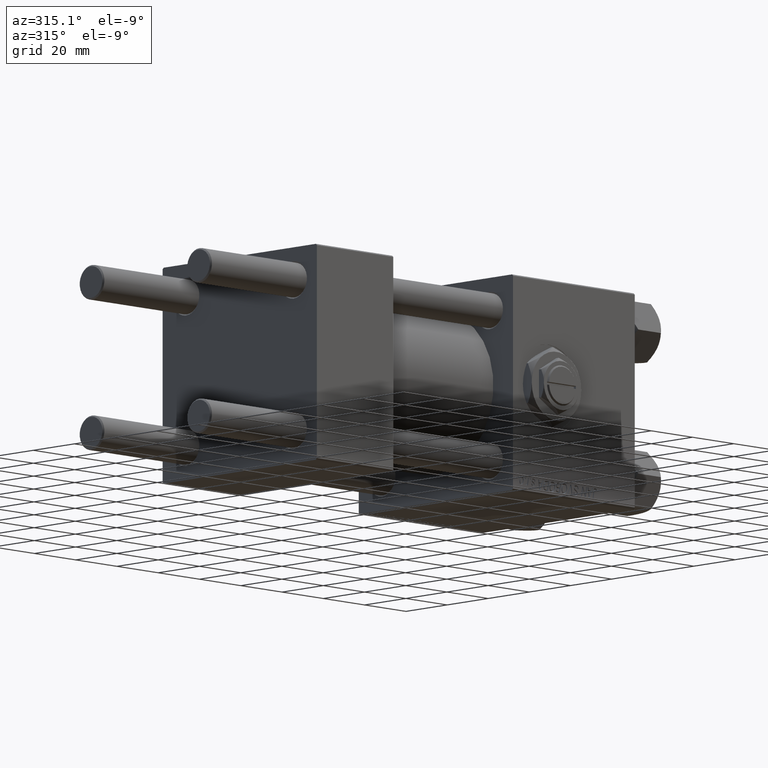
[diagram: clean part render]
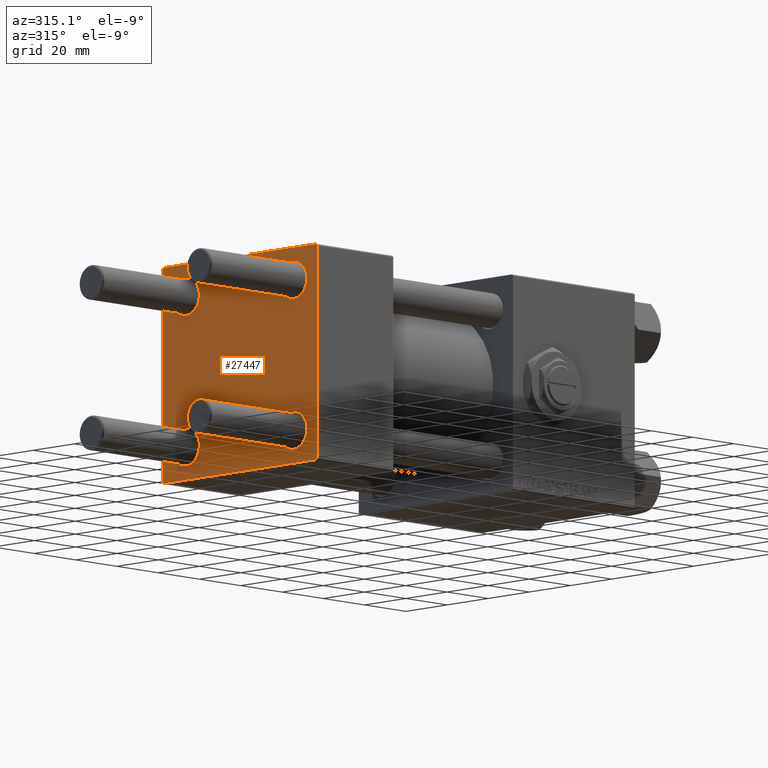
[diagram: same view with one face highlighted and labeled with its STEP entity id]
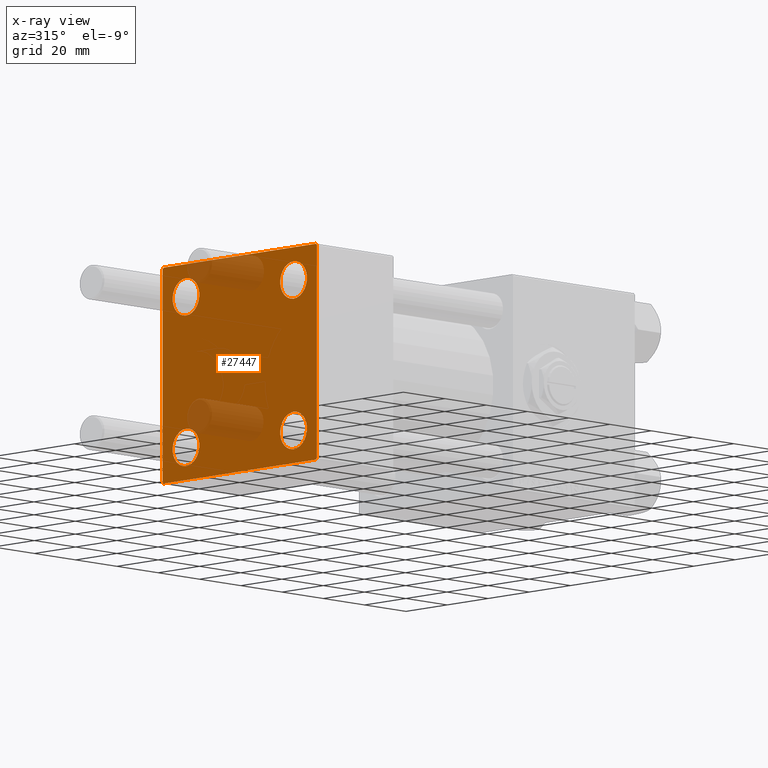
[diagram: x-ray of the same camera — body ghosted, the highlighted face saturated]
A machine part, auxiliary view. The second image highlights one B-rep face of the part: STEP entity #27447.
The next image is the same camera in x-ray: the body ghosted, the highlighted face saturated — about 15% of this face is hidden behind the body in this view.
In plain terms, the highlighted planar face has unit normal (-1, 0, 0).
Its self-contained STEP definition (entity closure, byte-faithful):
#744 = ORIENTED_EDGE ( 'NONE', *, *, #12188, .T. ) ;
#835 = CARTESIAN_POINT ( 'NONE',  ( 0.000000000000000000, 26.14999999999999858, -26.15000000000000213 ) ) ;
#1197 = VERTEX_POINT ( 'NONE', #45998 ) ;
#1341 = CIRCLE ( 'NONE', #18032, 6.500000000000015987 ) ;
#2015 = ORIENTED_EDGE ( 'NONE', *, *, #9398, .F. ) ;
#2099 = CIRCLE ( 'NONE', #37214, 6.500000000000023093 ) ;
#2417 = VERTEX_POINT ( 'NONE', #15288 ) ;
#2962 = CARTESIAN_POINT ( 'NONE',  ( 0.000000000000000000, -26.14999999999999147, 26.15000000000000924 ) ) ;
#2993 = FACE_BOUND ( 'NONE', #40382, .T. ) ;
#3048 = VERTEX_POINT ( 'NONE', #30368 ) ;
#3246 = FACE_OUTER_BOUND ( 'NONE', #37175, .T. ) ;
#3398 = DIRECTION ( 'NONE',  ( 0.000000000000000000, -0.7071067811865524577, 0.7071067811865426878 ) ) ;
#3563 = AXIS2_PLACEMENT_3D ( 'NONE', #49771, #33301, #25705 ) ;
#3636 = EDGE_CURVE ( 'NONE', #21448, #1197, #28379, .T. ) ;
#4049 = CARTESIAN_POINT ( 'NONE',  ( 0.000000000000000000, 26.14999999999999858, 26.15000000000000213 ) ) ;
#4135 = CARTESIAN_POINT ( 'NONE',  ( 0.000000000000000000, 37.24999999999998579, -37.24999999999998579 ) ) ;
#4650 = CARTESIAN_POINT ( 'NONE',  ( 0.000000000000000000, 37.24999999999999289, 37.24999999999999289 ) ) ;
#5219 = ORIENTED_EDGE ( 'NONE', *, *, #7118, .T. ) ;
#5847 = AXIS2_PLACEMENT_3D ( 'NONE', #32639, #40244, #16158 ) ;
#5946 = EDGE_CURVE ( 'NONE', #2417, #22071, #42112, .T. ) ;
#6238 = CARTESIAN_POINT ( 'NONE',  ( 0.000000000000000000, 37.49999999999999289, -37.50000000000000000 ) ) ;
#7118 = EDGE_CURVE ( 'NONE', #35419, #3048, #2099, .T. ) ;
#7170 = FACE_BOUND ( 'NONE', #21075, .T. ) ;
#7358 = LINE ( 'NONE', #31425, #33093 ) ;
#7685 = VECTOR ( 'NONE', #32649, 1000.000000000000114 ) ;
#7847 = LINE ( 'NONE', #35578, #45787 ) ;
#9398 = EDGE_CURVE ( 'NONE', #51560, #9930, #7358, .T. ) ;
#9629 = ORIENTED_EDGE ( 'NONE', *, *, #24409, .T. ) ;
#9750 = DIRECTION ( 'NONE',  ( 0.000000000000000000, 0.000000000000000000, 1.000000000000000000 ) ) ;
#9930 = VERTEX_POINT ( 'NONE', #11957 ) ;
#10439 = VERTEX_POINT ( 'NONE', #50500 ) ;
#11459 = ORIENTED_EDGE ( 'NONE', *, *, #3636, .T. ) ;
#11551 = DIRECTION ( 'NONE',  ( 0.000000000000000000, 9.251858538542971581E-17, -1.000000000000000000 ) ) ;
#11623 = EDGE_CURVE ( 'NONE', #18907, #22582, #33054, .T. ) ;
#11710 = AXIS2_PLACEMENT_3D ( 'NONE', #2962, #34397, #22838 ) ;
#11957 = CARTESIAN_POINT ( 'NONE',  ( 0.000000000000000000, -37.50000000000000000, -37.00000000000003553 ) ) ;
#12169 = CARTESIAN_POINT ( 'NONE',  ( 0.000000000000000000, 26.14999999999999858, -32.65000000000001990 ) ) ;
#12188 = EDGE_CURVE ( 'NONE', #10439, #37427, #1341, .T. ) ;
#12499 = AXIS2_PLACEMENT_3D ( 'NONE', #29621, #45593, #9750 ) ;
#12760 = CIRCLE ( 'NONE', #3563, 6.500000000000015987 ) ;
#12918 = DIRECTION ( 'NONE',  ( 0.000000000000000000, 0.000000000000000000, -1.000000000000000000 ) ) ;
#13612 = DIRECTION ( 'NONE',  ( 0.000000000000000000, 0.000000000000000000, 1.000000000000000000 ) ) ;
#13845 = CARTESIAN_POINT ( 'NONE',  ( 0.000000000000000000, -26.14999999999999147, 32.65000000000003411 ) ) ;
#13984 = DIRECTION ( 'NONE',  ( 0.000000000000000000, 0.000000000000000000, 1.000000000000000000 ) ) ;
#15288 = CARTESIAN_POINT ( 'NONE',  ( 0.000000000000000000, 36.99999999999997868, -37.50000000000000000 ) ) ;
#15291 = CARTESIAN_POINT ( 'NONE',  ( -0.000000000000000000, -37.25000000000000000, 37.25000000000000000 ) ) ;
#16032 = EDGE_CURVE ( 'NONE', #17509, #21448, #25044, .T. ) ;
#16059 = CARTESIAN_POINT ( 'NONE',  ( 0.000000000000000000, 36.99999999999999289, 37.50000000000000000 ) ) ;
#16158 = DIRECTION ( 'NONE',  ( 0.000000000000000000, 0.000000000000000000, 1.000000000000000000 ) ) ;
#16452 = CARTESIAN_POINT ( 'NONE',  ( 0.000000000000000000, 26.14999999999999858, -19.64999999999998792 ) ) ;
#17298 = CARTESIAN_POINT ( 'NONE',  ( 0.000000000000000000, 26.14999999999999858, 19.64999999999998437 ) ) ;
#17509 = VERTEX_POINT ( 'NONE', #16059 ) ;
#17702 = EDGE_CURVE ( 'NONE', #17509, #34661, #42751, .T. ) ;
#17818 = CARTESIAN_POINT ( 'NONE',  ( 0.000000000000000000, -37.50000000000000711, 36.99999999999999289 ) ) ;
#17869 = CARTESIAN_POINT ( 'NONE',  ( 0.000000000000000000, -37.00000000000002132, -37.50000000000000711 ) ) ;
#18032 = AXIS2_PLACEMENT_3D ( 'NONE', #42011, #37294, #13984 ) ;
#18210 = VECTOR ( 'NONE', #51654, 1000.000000000000114 ) ;
#18774 = VECTOR ( 'NONE', #22187, 1000.000000000000000 ) ;
#18907 = VERTEX_POINT ( 'NONE', #12169 ) ;
#19999 = DIRECTION ( 'NONE',  ( 1.000000000000000000, -0.000000000000000000, 0.000000000000000000 ) ) ;
#21075 = EDGE_LOOP ( 'NONE', ( #25436, #26083 ) ) ;
#21448 = VERTEX_POINT ( 'NONE', #30668 ) ;
#21977 = DIRECTION ( 'NONE',  ( 1.000000000000000000, -0.000000000000000000, 0.000000000000000000 ) ) ;
#22071 = VERTEX_POINT ( 'NONE', #17869 ) ;
#22187 = DIRECTION ( 'NONE',  ( 0.000000000000000000, -1.000000000000000000, -9.251858538542972814E-17 ) ) ;
#22189 = CARTESIAN_POINT ( 'NONE',  ( 0.000000000000000000, -37.00000000000000711, 37.49999999999999289 ) ) ;
#22271 = ORIENTED_EDGE ( 'NONE', *, *, #41904, .T. ) ;
#22582 = VERTEX_POINT ( 'NONE', #16452 ) ;
#22615 = FACE_BOUND ( 'NONE', #28283, .T. ) ;
#22838 = DIRECTION ( 'NONE',  ( 0.000000000000000000, 0.000000000000000000, 1.000000000000000000 ) ) ;
#22958 = CARTESIAN_POINT ( 'NONE',  ( 0.000000000000000000, -26.14999999999999147, 19.64999999999999147 ) ) ;
#23317 = VERTEX_POINT ( 'NONE', #22958 ) ;
#23463 = AXIS2_PLACEMENT_3D ( 'NONE', #46439, #46194, #50106 ) ;
#23828 = CARTESIAN_POINT ( 'NONE',  ( 0.000000000000000000, -26.14999999999999147, -19.64999999999999503 ) ) ;
#24409 = EDGE_CURVE ( 'NONE', #37427, #10439, #36715, .T. ) ;
#25044 = LINE ( 'NONE', #4650, #30692 ) ;
#25436 = ORIENTED_EDGE ( 'NONE', *, *, #31497, .T. ) ;
#25705 = DIRECTION ( 'NONE',  ( 0.000000000000000000, 0.000000000000000000, 1.000000000000000000 ) ) ;
#25899 = CARTESIAN_POINT ( 'NONE',  ( 0.000000000000000000, -26.14999999999999147, 26.15000000000000924 ) ) ;
#26083 = ORIENTED_EDGE ( 'NONE', *, *, #11623, .T. ) ;
#26737 = EDGE_CURVE ( 'NONE', #23317, #30036, #49324, .T. ) ;
#27447 = ADVANCED_FACE ( 'NONE', ( #22615, #50861, #7170, #2993, #3246 ), #50614, .T. ) ;
#28213 = LINE ( 'NONE', #4135, #7685 ) ;
#28216 = DIRECTION ( 'NONE',  ( 0.000000000000000000, 0.7071067811865474617, -0.7071067811865474617 ) ) ;
#28283 = EDGE_LOOP ( 'NONE', ( #36699, #29893 ) ) ;
#28379 = LINE ( 'NONE', #48765, #39359 ) ;
#28419 = CIRCLE ( 'NONE', #5847, 6.500000000000023093 ) ;
#29049 = EDGE_CURVE ( 'NONE', #1197, #2417, #28213, .T. ) ;
#29621 = CARTESIAN_POINT ( 'NONE',  ( 0.000000000000000000, -26.14999999999999147, -26.15000000000000924 ) ) ;
#29893 = ORIENTED_EDGE ( 'NONE', *, *, #26737, .T. ) ;
#30036 = VERTEX_POINT ( 'NONE', #13845 ) ;
#30368 = CARTESIAN_POINT ( 'NONE',  ( 0.000000000000000000, 26.14999999999999858, 32.65000000000002700 ) ) ;
#30668 = CARTESIAN_POINT ( 'NONE',  ( 0.000000000000000000, 37.49999999999999289, 37.00000000000000000 ) ) ;
#30692 = VECTOR ( 'NONE', #28216, 1000.000000000000114 ) ;
#31261 = DIRECTION ( 'NONE',  ( 0.000000000000000000, 0.000000000000000000, 1.000000000000000000 ) ) ;
#31425 = CARTESIAN_POINT ( 'NONE',  ( 0.000000000000000000, -37.50000000000000711, 37.49999999999999289 ) ) ;
#31497 = EDGE_CURVE ( 'NONE', #22582, #18907, #12760, .T. ) ;
#32043 = ORIENTED_EDGE ( 'NONE', *, *, #16032, .T. ) ;
#32639 = CARTESIAN_POINT ( 'NONE',  ( 0.000000000000000000, 26.14999999999999858, 26.15000000000000213 ) ) ;
#32649 = DIRECTION ( 'NONE',  ( -0.000000000000000000, -0.7071067811865474617, -0.7071067811865474617 ) ) ;
#32756 = DIRECTION ( 'NONE',  ( 1.000000000000000000, -0.000000000000000000, 0.000000000000000000 ) ) ;
#33054 = CIRCLE ( 'NONE', #39745, 6.500000000000015987 ) ;
#33093 = VECTOR ( 'NONE', #11551, 1000.000000000000000 ) ;
#33301 = DIRECTION ( 'NONE',  ( 1.000000000000000000, -0.000000000000000000, 0.000000000000000000 ) ) ;
#34397 = DIRECTION ( 'NONE',  ( 1.000000000000000000, -0.000000000000000000, 0.000000000000000000 ) ) ;
#34661 = VERTEX_POINT ( 'NONE', #22189 ) ;
#34892 = CARTESIAN_POINT ( 'NONE',  ( 0.000000000000000000, 37.49999999999999289, 37.50000000000000000 ) ) ;
#35419 = VERTEX_POINT ( 'NONE', #17298 ) ;
#35578 = CARTESIAN_POINT ( 'NONE',  ( 0.000000000000000000, -37.24999999999975842, -37.25000000000027001 ) ) ;
#36699 = ORIENTED_EDGE ( 'NONE', *, *, #47161, .T. ) ;
#36715 = CIRCLE ( 'NONE', #12499, 6.500000000000015987 ) ;
#37175 = EDGE_LOOP ( 'NONE', ( #11459, #48147, #45172, #22271, #2015, #47946, #40455, #32043 ) ) ;
#37214 = AXIS2_PLACEMENT_3D ( 'NONE', #4049, #19999, #31261 ) ;
#37294 = DIRECTION ( 'NONE',  ( 1.000000000000000000, -0.000000000000000000, 0.000000000000000000 ) ) ;
#37427 = VERTEX_POINT ( 'NONE', #23828 ) ;
#39268 = CIRCLE ( 'NONE', #11710, 6.500000000000023093 ) ;
#39359 = VECTOR ( 'NONE', #12918, 1000.000000000000000 ) ;
#39745 = AXIS2_PLACEMENT_3D ( 'NONE', #835, #32756, #48444 ) ;
#40244 = DIRECTION ( 'NONE',  ( 1.000000000000000000, -0.000000000000000000, 0.000000000000000000 ) ) ;
#40382 = EDGE_LOOP ( 'NONE', ( #44584, #5219 ) ) ;
#40455 = ORIENTED_EDGE ( 'NONE', *, *, #17702, .F. ) ;
#41325 = EDGE_CURVE ( 'NONE', #51560, #34661, #44354, .T. ) ;
#41664 = VECTOR ( 'NONE', #46402, 1000.000000000000000 ) ;
#41904 = EDGE_CURVE ( 'NONE', #22071, #9930, #7847, .T. ) ;
#42011 = CARTESIAN_POINT ( 'NONE',  ( 0.000000000000000000, -26.14999999999999147, -26.15000000000000924 ) ) ;
#42112 = LINE ( 'NONE', #6238, #18774 ) ;
#42751 = LINE ( 'NONE', #34892, #41664 ) ;
#44354 = LINE ( 'NONE', #15291, #18210 ) ;
#44584 = ORIENTED_EDGE ( 'NONE', *, *, #48121, .T. ) ;
#45172 = ORIENTED_EDGE ( 'NONE', *, *, #5946, .T. ) ;
#45593 = DIRECTION ( 'NONE',  ( 1.000000000000000000, -0.000000000000000000, 0.000000000000000000 ) ) ;
#45787 = VECTOR ( 'NONE', #3398, 1000.000000000000000 ) ;
#45998 = CARTESIAN_POINT ( 'NONE',  ( 0.000000000000000000, 37.49999999999999289, -36.99999999999998579 ) ) ;
#46069 = EDGE_LOOP ( 'NONE', ( #9629, #744 ) ) ;
#46194 = DIRECTION ( 'NONE',  ( -1.000000000000000000, 0.000000000000000000, -0.000000000000000000 ) ) ;
#46402 = DIRECTION ( 'NONE',  ( 0.000000000000000000, -1.000000000000000000, -9.251858538542971581E-17 ) ) ;
#46439 = CARTESIAN_POINT ( 'NONE',  ( 0.000000000000000000, 0.000000000000000000, 0.000000000000000000 ) ) ;
#47161 = EDGE_CURVE ( 'NONE', #30036, #23317, #39268, .T. ) ;
#47678 = AXIS2_PLACEMENT_3D ( 'NONE', #25899, #21977, #13612 ) ;
#47946 = ORIENTED_EDGE ( 'NONE', *, *, #41325, .T. ) ;
#48121 = EDGE_CURVE ( 'NONE', #3048, #35419, #28419, .T. ) ;
#48147 = ORIENTED_EDGE ( 'NONE', *, *, #29049, .T. ) ;
#48444 = DIRECTION ( 'NONE',  ( 0.000000000000000000, 0.000000000000000000, 1.000000000000000000 ) ) ;
#48765 = CARTESIAN_POINT ( 'NONE',  ( 0.000000000000000000, 37.49999999999999289, 37.50000000000000000 ) ) ;
#49324 = CIRCLE ( 'NONE', #47678, 6.500000000000023093 ) ;
#49771 = CARTESIAN_POINT ( 'NONE',  ( 0.000000000000000000, 26.14999999999999858, -26.15000000000000213 ) ) ;
#50106 = DIRECTION ( 'NONE',  ( -0.000000000000000000, 0.000000000000000000, 1.000000000000000000 ) ) ;
#50500 = CARTESIAN_POINT ( 'NONE',  ( 0.000000000000000000, -26.14999999999999147, -32.65000000000002700 ) ) ;
#50614 = PLANE ( 'NONE',  #23463 ) ;
#50861 = FACE_BOUND ( 'NONE', #46069, .T. ) ;
#51560 = VERTEX_POINT ( 'NONE', #17818 ) ;
#51654 = DIRECTION ( 'NONE',  ( -0.000000000000000000, 0.7071067811865474617, 0.7071067811865474617 ) ) ;